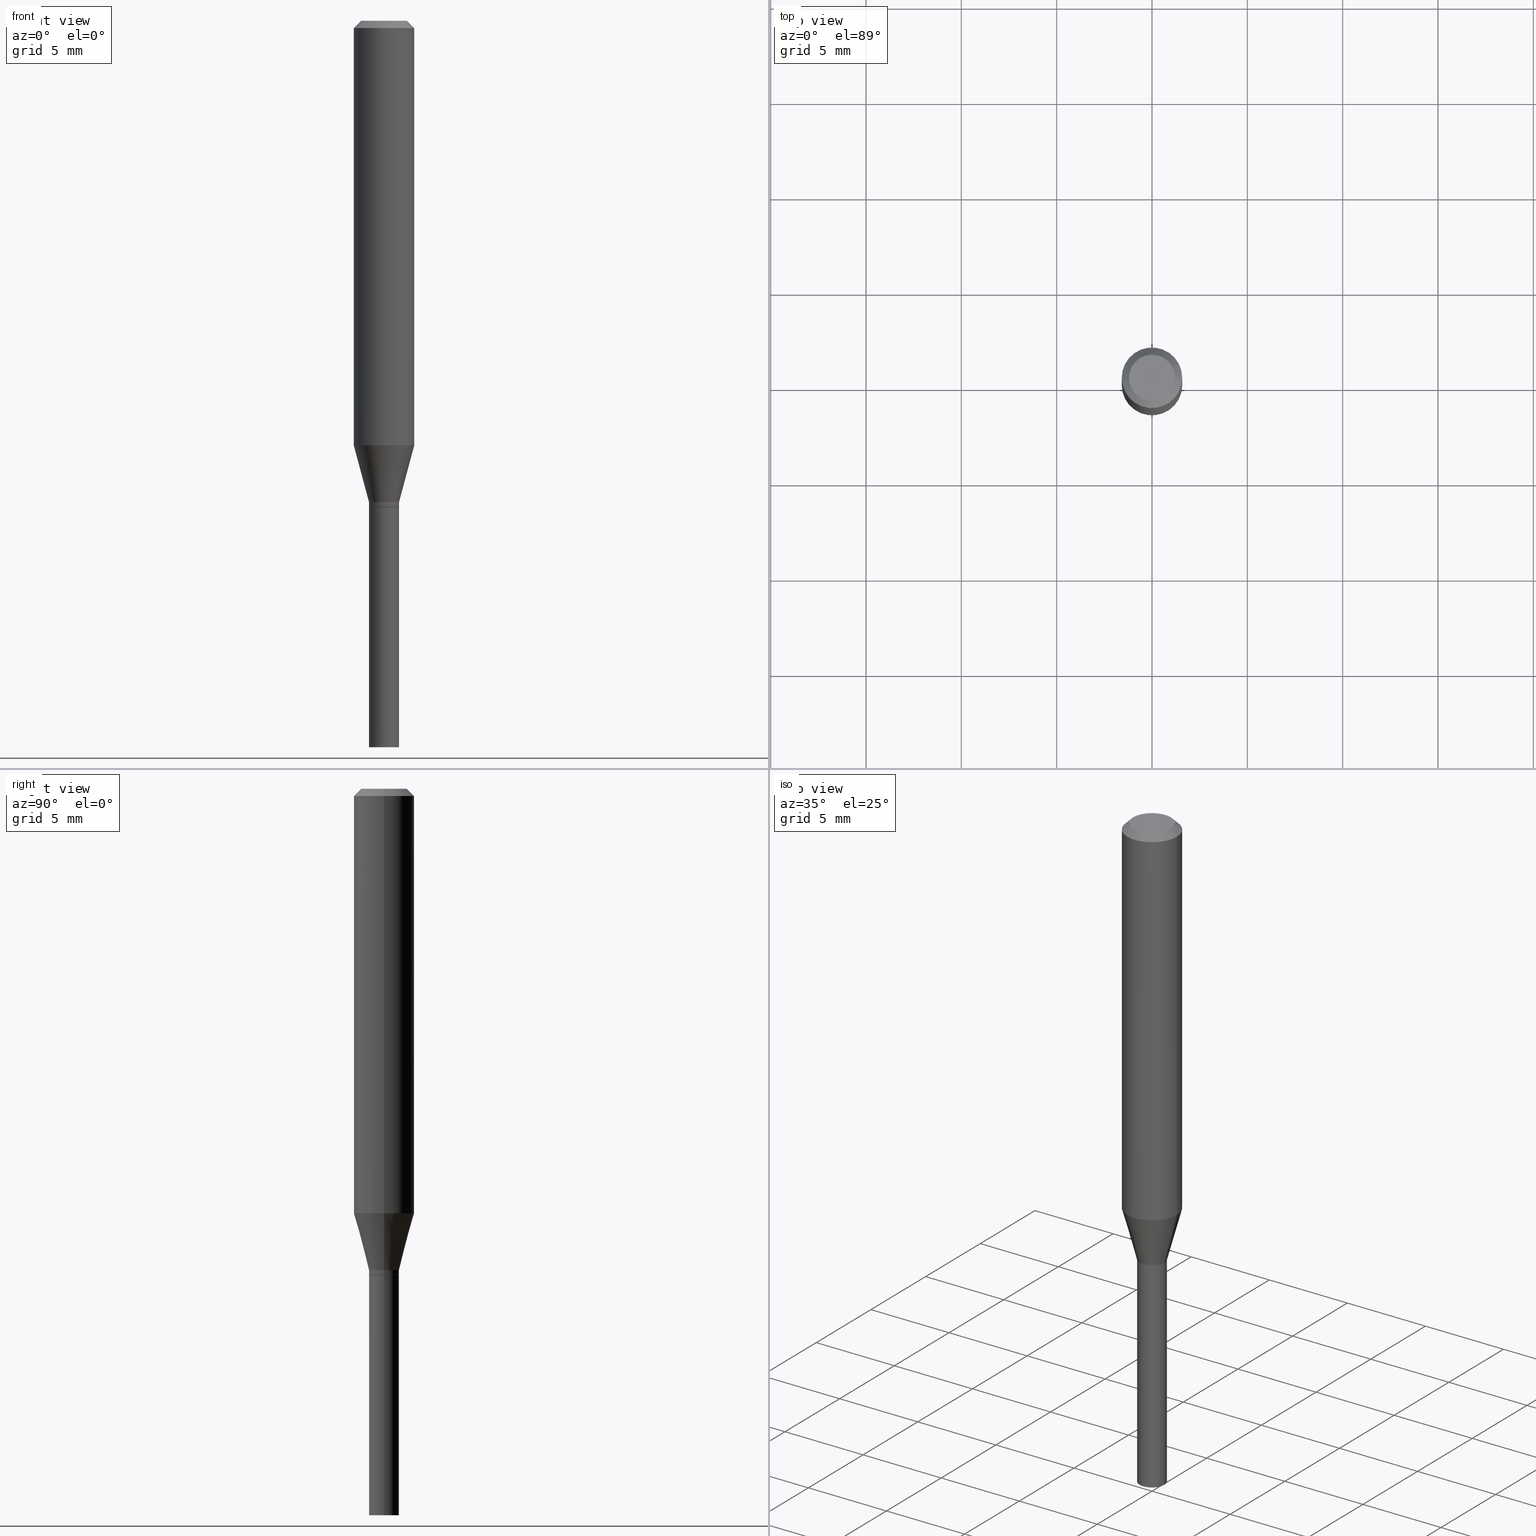
[diagram: canonical four-view strip — front | top / right | iso, engineering-drawing reading convention]
A machine part, canonical four-view strip (front | top / right | iso — engineering-drawing reading convention). The complete STEP part file that produces these views, byte-faithful:
ISO-10303-21;
HEADER;
FILE_DESCRIPTION (( 'STEP AP203' ),
    '1' );
FILE_NAME ('02680.STEP',
    '2024-03-18T21:19:14',
    ( '' ),
    ( '' ),
    'SwSTEP 2.0',
    'SolidWorks 2023',
    '' );
FILE_SCHEMA (( 'CONFIG_CONTROL_DESIGN' ));
ENDSEC;

DATA;
#1 = APPROVAL_DATE_TIME ( #382, #375 ) ;
#2 = LINE ( 'NONE', #387, #276 ) ;
#3 = CARTESIAN_POINT ( 'NONE',  ( -0.03099999999999999978, 2.202682480856310560E-16, -1.524869877979020612E-30 ) ) ;
#4 = AXIS2_PLACEMENT_3D ( 'NONE', #379, #239, #312 ) ;
#5 = CARTESIAN_POINT ( 'NONE',  ( -6.039856226162563845E-45, 8.623313963198305035E-31, 2.469815280770058928E-16 ) ) ;
#6 = ORIENTED_EDGE ( 'NONE', *, *, #307, .F. ) ;
#7 = DIRECTION ( 'NONE',  ( -1.000000000000000000, 6.982962677686266711E-15, 0.000000000000000000 ) ) ;
#8 = ORIENTED_EDGE ( 'NONE', *, *, #339, .T. ) ;
#9 = EDGE_CURVE ( 'NONE', #403, #164, #286, .T. ) ;
#10 = DIRECTION ( 'NONE',  ( 1.000000000000000000, -6.982962677686267499E-15, 4.852736867747366768E-29 ) ) ;
#11 = ORIENTED_EDGE ( 'NONE', *, *, #9, .F. ) ;
#12 = FACE_OUTER_BOUND ( 'NONE', #358, .T. ) ;
#13 = AXIS2_PLACEMENT_3D ( 'NONE', #157, #186, #150 ) ;
#14 = ORIENTED_EDGE ( 'NONE', *, *, #113, .F. ) ;
#15 = EDGE_CURVE ( 'NONE', #74, #332, #230, .T. ) ;
#16 = ORIENTED_EDGE ( 'NONE', *, *, #420, .T. ) ;
#17 = CARTESIAN_POINT ( 'NONE',  ( 2.430795993348026062E-29, -3.470532450810087145E-15, -0.9940000000000001057 ) ) ;
#18 = ORIENTED_EDGE ( 'NONE', *, *, #283, .F. ) ;
#19 = CC_DESIGN_PERSON_AND_ORGANIZATION_ASSIGNMENT ( #98, #94, ( #90 ) ) ;
#20 = AXIS2_PLACEMENT_3D ( 'NONE', #167, #278, #345 ) ;
#21 = ORIENTED_EDGE ( 'NONE', *, *, #104, .T. ) ;
#22 = DIRECTION ( 'NONE',  ( 1.000000000000000000, -6.982962677686266711E-15, 4.876176775795935793E-29 ) ) ;
#23 = ADVANCED_FACE ( 'NONE', ( #127 ), #232, .T. ) ;
#24 = EDGE_LOOP ( 'NONE', ( #48, #16, #8, #255 ) ) ;
#25 = CARTESIAN_POINT ( 'NONE',  ( 2.455250681409877327E-29, -3.505447264198518794E-15, -1.004000000000000226 ) ) ;
#26 = CLOSED_SHELL ( 'NONE', ( #77, #391, #219, #87, #101, #436, #23, #430, #38, #109, #149, #290 ) ) ;
#27 = PERSON_AND_ORGANIZATION_ROLE ( 'creator' ) ;
#28 = LOCAL_TIME ( 17, 19, 14.00000000000000000, #424 ) ;
#29 = DIRECTION ( 'NONE',  ( -2.445468806185136597E-29, 3.491481338843145583E-15, 1.000000000000000000 ) ) ;
#30 = PERSON_AND_ORGANIZATION ( #206, #117 ) ;
#31 = DIRECTION ( 'NONE',  ( 2.445468806185136597E-29, -3.491481338843145583E-15, -1.000000000000000000 ) ) ;
#32 = ORIENTED_EDGE ( 'NONE', *, *, #265, .T. ) ;
#33 = CC_DESIGN_PERSON_AND_ORGANIZATION_ASSIGNMENT ( #448, #225, ( #103 ) ) ;
#34 = DIRECTION ( 'NONE',  ( 1.000000000000000000, -6.982962677686270655E-15, 0.000000000000000000 ) ) ;
#35 = CONICAL_SURFACE ( 'NONE', #224, 0.03049999999999999586, 0.7853981633974739252 ) ;
#36 = LOCAL_TIME ( 17, 19, 14.00000000000000000, #279 ) ;
#37 = DIRECTION ( 'NONE',  ( -1.000000000000000000, 6.982962677686266711E-15, 0.000000000000000000 ) ) ;
#38 = ADVANCED_FACE ( 'NONE', ( #412 ), #85, .F. ) ;
#39 = DIRECTION ( 'NONE',  ( -2.445468806185136877E-29, 3.491481338843145188E-15, 1.000000000000000000 ) ) ;
#40 = DIRECTION ( 'NONE',  ( -2.445468806185136597E-29, 3.491481338843145583E-15, 1.000000000000000000 ) ) ;
#41 = EDGE_LOOP ( 'NONE', ( #148, #305, #11, #331 ) ) ;
#42 = CIRCLE ( 'NONE', #433, 0.03099999999999999978 ) ;
#43 = DIRECTION ( 'NONE',  ( -2.445468806185136597E-29, 3.491481338843145583E-15, 1.000000000000000000 ) ) ;
#44 = ORIENTED_EDGE ( 'NONE', *, *, #254, .F. ) ;
#45 = LINE ( 'NONE', #121, #216 ) ;
#46 = VERTEX_POINT ( 'NONE', #228 ) ;
#47 = CARTESIAN_POINT ( 'NONE',  ( -0.06250000000000000000, 3.840629472727444916E-16, -0.01499999999999999944 ) ) ;
#48 = ORIENTED_EDGE ( 'NONE', *, *, #209, .F. ) ;
#49 = UNCERTAINTY_MEASURE_WITH_UNIT (LENGTH_MEASURE( 1.000000000000000082E-05 ), #51, 'distance_accuracy_value', 'NONE');
#50 = ORIENTED_EDGE ( 'NONE', *, *, #254, .T. ) ;
#51 =( CONVERSION_BASED_UNIT ( 'INCH', #407 ) LENGTH_UNIT ( ) NAMED_UNIT ( #385 ) );
#52 = CYLINDRICAL_SURFACE ( 'NONE', #416, 0.06250000000000000000 ) ;
#53 = CARTESIAN_POINT ( 'NONE',  ( 3.316907271900976096E-16, 0.04749999999999999362, -4.235459955654645622E-17 ) ) ;
#54 = ADVANCED_FACE ( 'NONE', ( #263 ), #372, .T. ) ;
#55 = CIRCLE ( 'NONE', #357, 0.03100000000000005529 ) ;
#56 = CARTESIAN_POINT ( 'NONE',  ( 0.000000000000000000, 0.000000000000000000, 0.000000000000000000 ) ) ;
#57 = ORIENTED_EDGE ( 'NONE', *, *, #154, .F. ) ;
#58 = ORIENTED_EDGE ( 'NONE', *, *, #283, .T. ) ;
#59 = LINE ( 'NONE', #429, #399 ) ;
#60 = VECTOR ( 'NONE', #349, 39.37007874015748143 ) ;
#61 = APPROVAL_STATUS ( 'not_yet_approved' ) ;
#62 = CIRCLE ( 'NONE', #344, 0.03100000000000005529 ) ;
#63 = CARTESIAN_POINT ( 'NONE',  ( 0.06250000000000000000, -4.811533449433679005E-16, -0.01499999999999999944 ) ) ;
#64 = CARTESIAN_POINT ( 'NONE',  ( -0.06250000000000000000, 4.440892098500626162E-16, -3.074334431409316114E-30 ) ) ;
#65 = APPLICATION_CONTEXT ( 'configuration controlled 3d designs of mechanical parts and assemblies' ) ;
#66 = LINE ( 'NONE', #284, #380 ) ;
#67 = LINE ( 'NONE', #3, #97 ) ;
#68 = FACE_OUTER_BOUND ( 'NONE', #296, .T. ) ;
#69 = VERTEX_POINT ( 'NONE', #370 ) ;
#70 = DIRECTION ( 'NONE',  ( -2.445468806185136597E-29, 3.491481338843145583E-15, 1.000000000000000000 ) ) ;
#71 = ORIENTED_EDGE ( 'NONE', *, *, #457, .T. ) ;
#72 = CIRCLE ( 'NONE', #389, 0.04749999999999999362 ) ;
#73 = DIRECTION ( 'NONE',  ( -2.445468806185136597E-29, 3.491481338843145583E-15, 1.000000000000000000 ) ) ;
#74 = VERTEX_POINT ( 'NONE', #83 ) ;
#75 = CC_DESIGN_PERSON_AND_ORGANIZATION_ASSIGNMENT ( #244, #463, ( #166 ) ) ;
#76 = CARTESIAN_POINT ( 'NONE',  ( 3.668203209277705088E-31, -5.237222008264718399E-17, -0.01499999999999999944 ) ) ;
#77 = ADVANCED_FACE ( 'NONE', ( #378 ), #268, .T. ) ;
#78 = ORIENTED_EDGE ( 'NONE', *, *, #209, .T. ) ;
#79 = DIRECTION ( 'NONE',  ( -2.445468806185136877E-29, 3.491481338843145188E-15, 1.000000000000000000 ) ) ;
#80 = ORIENTED_EDGE ( 'NONE', *, *, #113, .T. ) ;
#81 = AXIS2_PLACEMENT_3D ( 'NONE', #173, #207, #383 ) ;
#82 = PRODUCT_DEFINITION ( 'UNKNOWN', '', #166, #141 ) ;
#83 = CARTESIAN_POINT ( 'NONE',  ( -0.03099999999999999978, -4.151066388145987232E-15, -1.004000000000000226 ) ) ;
#84 =( NAMED_UNIT ( * ) PLANE_ANGLE_UNIT ( ) SI_UNIT ( $, .RADIAN. ) );
#85 = PLANE ( 'NONE',  #314 ) ;
#86 = ORIENTED_EDGE ( 'NONE', *, *, #420, .F. ) ;
#87 = ADVANCED_FACE ( 'NONE', ( #409 ), #52, .T. ) ;
#88 = AXIS2_PLACEMENT_3D ( 'NONE', #212, #70, #179 ) ;
#89 = VERTEX_POINT ( 'NONE', #124 ) ;
#90 = SECURITY_CLASSIFICATION ( '', '', #202 ) ;
#91 = EDGE_CURVE ( 'NONE', #261, #89, #288, .T. ) ;
#92 = DIRECTION ( 'NONE',  ( 1.000000000000000000, -6.982962677686270655E-15, 0.000000000000000000 ) ) ;
#93 = DIRECTION ( 'NONE',  ( -2.445468806185136597E-29, 3.491481338843145583E-15, 1.000000000000000000 ) ) ;
#94 = PERSON_AND_ORGANIZATION_ROLE ( 'classification_officer' ) ;
#95 = CC_DESIGN_PERSON_AND_ORGANIZATION_ASSIGNMENT ( #341, #27, ( #82 ) ) ;
#96 = CARTESIAN_POINT ( 'NONE',  ( 0.03049999999999999586, -3.718427625867950118E-15, -1.004000000000000226 ) ) ;
#97 = VECTOR ( 'NONE', #39, 39.37007874015748143 ) ;
#98 = PERSON_AND_ORGANIZATION ( #206, #117 ) ;
#99 = CARTESIAN_POINT ( 'NONE',  ( 3.668203209277705088E-31, -5.237222008264718399E-17, -0.01499999999999999944 ) ) ;
#100 = VERTEX_POINT ( 'NONE', #455 ) ;
#101 = ADVANCED_FACE ( 'NONE', ( #128 ), #443, .T. ) ;
#102 = DIRECTION ( 'NONE',  ( 0.7071067811865416886, -7.319954787623233957E-15, -0.7071067811865531239 ) ) ;
#103 = PRODUCT ( '02680', '02680', '', ( #333 ) ) ;
#104 = EDGE_CURVE ( 'NONE', #69, #456, #42, .T. ) ;
#105 = LINE ( 'NONE', #64, #60 ) ;
#106 = APPROVAL_DATE_TIME ( #273, #359 ) ;
#107 = CIRCLE ( 'NONE', #116, 0.03100000000000005876 ) ;
#108 = CARTESIAN_POINT ( 'NONE',  ( 0.000000000000000000, 0.000000000000000000, 0.000000000000000000 ) ) ;
#109 = ADVANCED_FACE ( 'NONE', ( #176 ), #272, .F. ) ;
#110 = CARTESIAN_POINT ( 'NONE',  ( 0.03049999999999999586, -3.718427625867950118E-15, -1.004000000000000226 ) ) ;
#111 = EDGE_LOOP ( 'NONE', ( #250, #78, #215, #445 ) ) ;
#112 = CARTESIAN_POINT ( 'NONE',  ( -6.039856226162563845E-45, 8.623313963198305035E-31, 2.469815280770058928E-16 ) ) ;
#113 = EDGE_CURVE ( 'NONE', #355, #100, #309, .T. ) ;
#114 = EDGE_LOOP ( 'NONE', ( #122, #400, #340, #258 ) ) ;
#115 = AXIS2_PLACEMENT_3D ( 'NONE', #56, #267, #22 ) ;
#116 = AXIS2_PLACEMENT_3D ( 'NONE', #321, #73, #289 ) ;
#117 = ORGANIZATION ( 'UNSPECIFIED', 'UNSPECIFIED', '' ) ;
#118 = DIRECTION ( 'NONE',  ( -2.445468806185136597E-29, 3.491481338843145583E-15, 1.000000000000000000 ) ) ;
#119 = ORIENTED_EDGE ( 'NONE', *, *, #386, .T. ) ;
#120 = EDGE_CURVE ( 'NONE', #355, #368, #246, .T. ) ;
#121 = CARTESIAN_POINT ( 'NONE',  ( -0.03049999999999999586, -3.288731729791688045E-15, -1.004000000000000226 ) ) ;
#122 = ORIENTED_EDGE ( 'NONE', *, *, #231, .F. ) ;
#123 = DIRECTION ( 'NONE',  ( 0.000000000000000000, 0.000000000000000000, 1.000000000000000000 ) ) ;
#124 = CARTESIAN_POINT ( 'NONE',  ( 0.06250000000000000000, -4.888073874380388472E-16, -0.01499999999999999944 ) ) ;
#125 = AXIS2_PLACEMENT_3D ( 'NONE', #133, #93, #243 ) ;
#126 = DIRECTION ( 'NONE',  ( -2.445468806185136597E-29, 3.491481338843145583E-15, 1.000000000000000000 ) ) ;
#127 = FACE_OUTER_BOUND ( 'NONE', #291, .T. ) ;
#128 = FACE_OUTER_BOUND ( 'NONE', #41, .T. ) ;
#129 = ORIENTED_EDGE ( 'NONE', *, *, #15, .F. ) ;
#130 = AXIS2_PLACEMENT_3D ( 'NONE', #251, #188, #214 ) ;
#131 = DIRECTION ( 'NONE',  ( -2.445468806185136597E-29, 3.491481338843145583E-15, 1.000000000000000000 ) ) ;
#132 = APPLICATION_CONTEXT ( 'configuration controlled 3d designs of mechanical parts and assemblies' ) ;
#133 = CARTESIAN_POINT ( 'NONE',  ( 2.455250681409877327E-29, -3.505447264198518794E-15, -1.004000000000000226 ) ) ;
#134 = PERSON_AND_ORGANIZATION ( #206, #117 ) ;
#135 = DIRECTION ( 'NONE',  ( 1.000000000000000000, -6.982962677686269866E-15, 0.000000000000000000 ) ) ;
#136 = CARTESIAN_POINT ( 'NONE',  ( -0.06250000000000000000, -2.615986089827427653E-15, -0.8764403995615810405 ) ) ;
#137 = VECTOR ( 'NONE', #257, 39.37007874015748143 ) ;
#138 = ORIENTED_EDGE ( 'NONE', *, *, #154, .T. ) ;
#139 = CARTESIAN_POINT ( 'NONE',  ( -0.04749999999999999362, 3.578768372314215436E-16, 2.469815280770034769E-16 ) ) ;
#140 = CC_DESIGN_DATE_AND_TIME_ASSIGNMENT ( #427, #311, ( #90 ) ) ;
#141 = DESIGN_CONTEXT ( 'detailed design', #132, 'design' ) ;
#142 = LINE ( 'NONE', #63, #308 ) ;
#143 = PERSON_AND_ORGANIZATION ( #206, #117 ) ;
#144 = CARTESIAN_POINT ( 'NONE',  ( 2.430795993348026062E-29, -3.470532450810087145E-15, -0.9940000000000001057 ) ) ;
#145 = CIRCLE ( 'NONE', #408, 0.03100000000000005876 ) ;
#146 = APPROVAL_PERSON_ORGANIZATION ( #30, #413, #282 ) ;
#147 = FACE_OUTER_BOUND ( 'NONE', #158, .T. ) ;
#148 = ORIENTED_EDGE ( 'NONE', *, *, #318, .T. ) ;
#149 = ADVANCED_FACE ( 'NONE', ( #460 ), #35, .T. ) ;
#150 = DIRECTION ( 'NONE',  ( 1.000000000000000000, -6.982962677686273810E-15, 0.000000000000000000 ) ) ;
#151 = VERTEX_POINT ( 'NONE', #139 ) ;
#152 = FACE_OUTER_BOUND ( 'NONE', #114, .T. ) ;
#153 = ORIENTED_EDGE ( 'NONE', *, *, #104, .F. ) ;
#154 = EDGE_CURVE ( 'NONE', #89, #261, #297, .T. ) ;
#155 = AXIS2_PLACEMENT_3D ( 'NONE', #76, #327, #7 ) ;
#156 = LOCAL_TIME ( 17, 19, 14.00000000000000000, #235 ) ;
#157 = CARTESIAN_POINT ( 'NONE',  ( 2.430795993348026062E-29, -3.470532450810087145E-15, -0.9940000000000001057 ) ) ;
#158 = EDGE_LOOP ( 'NONE', ( #21, #438, #187, #44 ) ) ;
#159 = DIRECTION ( 'NONE',  ( 1.000000000000000000, -6.982962677686273810E-15, 0.000000000000000000 ) ) ;
#160 = ORIENTED_EDGE ( 'NONE', *, *, #236, .F. ) ;
#161 = EDGE_LOOP ( 'NONE', ( #428, #280, #80, #86 ) ) ;
#162 = DIRECTION ( 'NONE',  ( -2.445468806185136597E-29, 3.491481338843145583E-15, 1.000000000000000000 ) ) ;
#163 = DIRECTION ( 'NONE',  ( -2.445468806185136597E-29, 3.491481338843145583E-15, 1.000000000000000000 ) ) ;
#164 = VERTEX_POINT ( 'NONE', #136 ) ;
#165 = CIRCLE ( 'NONE', #306, 0.03099999999999999978 ) ;
#166 = PRODUCT_DEFINITION_FORMATION_WITH_SPECIFIED_SOURCE ( 'ANY', '', #103, .NOT_KNOWN. ) ;
#167 = CARTESIAN_POINT ( 'NONE',  ( 2.455250681409877327E-29, -3.505447264198518794E-15, -1.004000000000000226 ) ) ;
#168 = CC_DESIGN_APPROVAL ( #359, ( #166 ) ) ;
#169 = CC_DESIGN_DATE_AND_TIME_ASSIGNMENT ( #172, #317, ( #82 ) ) ;
#170 = DIRECTION ( 'NONE',  ( 1.000000000000000000, -6.982962677686266711E-15, 0.000000000000000000 ) ) ;
#171 = DIRECTION ( 'NONE',  ( -2.445468806185136597E-29, 3.491481338843145583E-15, 1.000000000000000000 ) ) ;
#172 = DATE_AND_TIME ( #313, #36 ) ;
#173 = CARTESIAN_POINT ( 'NONE',  ( 2.143307657608283441E-29, -3.060075299677490269E-15, -0.8764403995615810405 ) ) ;
#174 = AXIS2_PLACEMENT_3D ( 'NONE', #233, #163, #193 ) ;
#175 = CONICAL_SURFACE ( 'NONE', #210, 0.06250000000000000000, 0.7853981633974401744 ) ;
#176 = FACE_OUTER_BOUND ( 'NONE', #447, .T. ) ;
#177 = CALENDAR_DATE ( 2024, 18, 3 ) ;
#178 = CYLINDRICAL_SURFACE ( 'NONE', #343, 0.03099999999999999978 ) ;
#179 = DIRECTION ( 'NONE',  ( 1.000000000000000000, -6.982962677686269866E-15, 0.000000000000000000 ) ) ;
#180 = CLOSED_SHELL ( 'NONE', ( #363, #183, #54, #418 ) ) ;
#181 = ORIENTED_EDGE ( 'NONE', *, *, #194, .T. ) ;
#182 = CONICAL_SURFACE ( 'NONE', #155, 0.06250000000000000000, 0.7853981633974401744 ) ;
#183 = ADVANCED_FACE ( 'NONE', ( #431 ), #319, .F. ) ;
#184 = DIRECTION ( 'NONE',  ( 1.000000000000000000, -6.982962677686273021E-15, 0.000000000000000000 ) ) ;
#185 = ORIENTED_EDGE ( 'NONE', *, *, #9, .T. ) ;
#186 = DIRECTION ( 'NONE',  ( -2.445468806185136597E-29, 3.491481338843145583E-15, 1.000000000000000000 ) ) ;
#187 = ORIENTED_EDGE ( 'NONE', *, *, #194, .F. ) ;
#188 = DIRECTION ( 'NONE',  ( 2.438088387897960049E-29, -3.491481338843145188E-15, -1.000000000000000000 ) ) ;
#189 = ORIENTED_EDGE ( 'NONE', *, *, #401, .F. ) ;
#190 = AXIS2_PLACEMENT_3D ( 'NONE', #245, #390, #281 ) ;
#191 = ORIENTED_EDGE ( 'NONE', *, *, #404, .F. ) ;
#192 = CARTESIAN_POINT ( 'NONE',  ( 3.668203209277705088E-31, -5.237222008264718399E-17, -0.01499999999999999944 ) ) ;
#193 = DIRECTION ( 'NONE',  ( 1.000000000000000000, -6.982962677686266711E-15, 4.876176775795935232E-29 ) ) ;
#194 = EDGE_CURVE ( 'NONE', #332, #74, #453, .T. ) ;
#195 = AXIS2_PLACEMENT_3D ( 'NONE', #5, #439, #10 ) ;
#196 = CARTESIAN_POINT ( 'NONE',  ( 2.455250681409877327E-29, -3.505447264198518794E-15, -1.004000000000000226 ) ) ;
#197 = EDGE_LOOP ( 'NONE', ( #153, #361 ) ) ;
#198 = EDGE_CURVE ( 'NONE', #368, #355, #237, .T. ) ;
#199 = ORIENTED_EDGE ( 'NONE', *, *, #386, .F. ) ;
#200 = AXIS2_PLACEMENT_3D ( 'NONE', #229, #373, #337 ) ;
#201 = CARTESIAN_POINT ( 'NONE',  ( 3.668203209277704895E-29, -5.237222008264718177E-15, -1.500000000000000222 ) ) ;
#202 = SECURITY_CLASSIFICATION_LEVEL ( 'unclassified' ) ;
#203 = DIRECTION ( 'NONE',  ( -0.2588190451025214611, 5.211531920934551042E-15, 0.9659258262890682012 ) ) ;
#204 = CALENDAR_DATE ( 2024, 18, 3 ) ;
#205 = VERTEX_POINT ( 'NONE', #421 ) ;
#206 = PERSON ( 'UNSPECIFIED', 'UNSPECIFIED', 'UNSPECIFIED', ('UNSPECIFIED'), ('UNSPECIFIED'), ('UNSPECIFIED') ) ;
#207 = DIRECTION ( 'NONE',  ( -2.445468806185136597E-29, 3.491481338843145583E-15, 1.000000000000000000 ) ) ;
#208 = DIRECTION ( 'NONE',  ( -2.445468806185136597E-29, 3.491481338843145583E-15, 1.000000000000000000 ) ) ;
#209 = EDGE_CURVE ( 'NONE', #46, #328, #59, .T. ) ;
#210 = AXIS2_PLACEMENT_3D ( 'NONE', #99, #31, #37 ) ;
#211 = DIRECTION ( 'NONE',  ( 0.7071067811865656694, -2.468850131082446387E-15, 0.7071067811865294761 ) ) ;
#212 = CARTESIAN_POINT ( 'NONE',  ( 2.455250681409877327E-29, -3.505447264198518794E-15, -1.004000000000000226 ) ) ;
#213 = ORIENTED_EDGE ( 'NONE', *, *, #265, .F. ) ;
#214 = DIRECTION ( 'NONE',  ( -1.000000000000000000, 6.982962677686265922E-15, -4.876176775795935793E-29 ) ) ;
#215 = ORIENTED_EDGE ( 'NONE', *, *, #318, .F. ) ;
#216 = VECTOR ( 'NONE', #260, 39.37007874015748143 ) ;
#217 = CARTESIAN_POINT ( 'NONE',  ( -0.03049999999999999586, -3.286082502617576844E-15, -1.004000000000000226 ) ) ;
#218 = ORIENTED_EDGE ( 'NONE', *, *, #371, .T. ) ;
#219 = ADVANCED_FACE ( 'NONE', ( #423 ), #175, .T. ) ;
#220 = CARTESIAN_POINT ( 'NONE',  ( 3.668203209277704895E-29, -5.237222008264718177E-15, -1.500000000000000222 ) ) ;
#221 = ORIENTED_EDGE ( 'NONE', *, *, #198, .F. ) ;
#222 =( NAMED_UNIT ( * ) SI_UNIT ( $, .STERADIAN. ) SOLID_ANGLE_UNIT ( ) );
#223 = ORIENTED_EDGE ( 'NONE', *, *, #365, .T. ) ;
#224 = AXIS2_PLACEMENT_3D ( 'NONE', #464, #29, #310 ) ;
#225 = PERSON_AND_ORGANIZATION_ROLE ( 'design_owner' ) ;
#226 = DIRECTION ( 'NONE',  ( -1.000000000000000000, 6.982962677686265922E-15, -4.876176775795935793E-29 ) ) ;
#227 = APPLICATION_PROTOCOL_DEFINITION ( 'international standard', 'config_control_design', 1994, #65 ) ;
#228 = CARTESIAN_POINT ( 'NONE',  ( -0.03100000000000005876, -3.283433275443465643E-15, -1.003500000000000059 ) ) ;
#229 = CARTESIAN_POINT ( 'NONE',  ( 2.430795993348026062E-29, -3.470532450810087145E-15, -0.9940000000000001057 ) ) ;
#230 = CIRCLE ( 'NONE', #452, 0.03099999999999999978 ) ;
#231 = EDGE_CURVE ( 'NONE', #205, #89, #142, .T. ) ;
#232 = CYLINDRICAL_SURFACE ( 'NONE', #115, 0.06250000000000000000 ) ;
#233 = CARTESIAN_POINT ( 'NONE',  ( 0.000000000000000000, 0.000000000000000000, 0.000000000000000000 ) ) ;
#234 = CARTESIAN_POINT ( 'NONE',  ( 3.668203209277705088E-31, -5.237222008264718399E-17, -0.01499999999999999944 ) ) ;
#235 = COORDINATED_UNIVERSAL_TIME_OFFSET ( 5, 0, .BEHIND. ) ;
#236 = EDGE_CURVE ( 'NONE', #328, #164, #2, .T. ) ;
#237 = CIRCLE ( 'NONE', #264, 0.03049999999999999586 ) ;
#238 = APPROVAL_PERSON_ORGANIZATION ( #143, #359, #432 ) ;
#239 = DIRECTION ( 'NONE',  ( -2.438088387897960049E-29, 3.491481338843145188E-15, 1.000000000000000000 ) ) ;
#240 = PERSON_AND_ORGANIZATION ( #206, #117 ) ;
#241 = CARTESIAN_POINT ( 'NONE',  ( -0.06250000000000000000, -1.112134550030006255E-15, -0.01499999999999999944 ) ) ;
#242 = COORDINATED_UNIVERSAL_TIME_OFFSET ( 5, 0, .BEHIND. ) ;
#243 = DIRECTION ( 'NONE',  ( 1.000000000000000000, -6.982962677686269866E-15, 0.000000000000000000 ) ) ;
#244 = PERSON_AND_ORGANIZATION ( #206, #117 ) ;
#245 = CARTESIAN_POINT ( 'NONE',  ( 0.000000000000000000, 0.000000000000000000, 0.000000000000000000 ) ) ;
#246 = CIRCLE ( 'NONE', #125, 0.03049999999999999586 ) ;
#247 = APPROVAL_ROLE ( '' ) ;
#248 = PRODUCT_DEFINITION_SHAPE ( 'NONE', 'NONE',  #82 ) ;
#249 = DIRECTION ( 'NONE',  ( 1.000000000000000000, -6.982962677686270655E-15, 0.000000000000000000 ) ) ;
#250 = ORIENTED_EDGE ( 'NONE', *, *, #401, .T. ) ;
#251 = CARTESIAN_POINT ( 'NONE',  ( 2.164718430082987858E-16, 0.03099999999999649564, -1.004000000000000226 ) ) ;
#252 = ORIENTED_EDGE ( 'NONE', *, *, #91, .F. ) ;
#253 = DIRECTION ( 'NONE',  ( -0.7071067811865416886, 2.468850131082196713E-15, -0.7071067811865531239 ) ) ;
#254 = EDGE_CURVE ( 'NONE', #69, #332, #66, .T. ) ;
#255 = ORIENTED_EDGE ( 'NONE', *, *, #457, .F. ) ;
#256 = AXIS2_PLACEMENT_3D ( 'NONE', #381, #462, #351 ) ;
#257 = DIRECTION ( 'NONE',  ( -2.445468806185136877E-29, 3.491481338843145188E-15, 1.000000000000000000 ) ) ;
#258 = ORIENTED_EDGE ( 'NONE', *, *, #91, .T. ) ;
#259 = MANIFOLD_SOLID_BREP ( 'Body-Move/Copy2[2]', #26 ) ;
#260 = DIRECTION ( 'NONE',  ( -0.7071067811865656694, 7.493145998870420424E-15, 0.7071067811865294761 ) ) ;
#261 = VERTEX_POINT ( 'NONE', #241 ) ;
#262 = MANIFOLD_SOLID_BREP ( 'Body-Move/Copy2[1]', #180 ) ;
#263 = FACE_OUTER_BOUND ( 'NONE', #419, .T. ) ;
#264 = AXIS2_PLACEMENT_3D ( 'NONE', #25, #171, #135 ) ;
#265 = EDGE_CURVE ( 'NONE', #164, #403, #425, .T. ) ;
#266 = APPLICATION_PROTOCOL_DEFINITION ( 'international standard', 'config_control_design', 1994, #132 ) ;
#267 = DIRECTION ( 'NONE',  ( -2.445468806185136597E-29, 3.491481338843145583E-15, 1.000000000000000000 ) ) ;
#268 = CYLINDRICAL_SURFACE ( 'NONE', #335, 0.03100000000000005876 ) ;
#269 = CARTESIAN_POINT ( 'NONE',  ( 2.143307657608283441E-29, -3.060075299677490269E-15, -0.8764403995615810405 ) ) ;
#270 = VECTOR ( 'NONE', #79, 39.37007874015748143 ) ;
#271 = ORIENTED_EDGE ( 'NONE', *, *, #346, .T. ) ;
#272 = PLANE ( 'NONE',  #20 ) ;
#273 = DATE_AND_TIME ( #275, #28 ) ;
#274 = DIRECTION ( 'NONE',  ( -2.445468806185136877E-29, 3.491481338843145188E-15, 1.000000000000000000 ) ) ;
#275 = CALENDAR_DATE ( 2024, 18, 3 ) ;
#276 = VECTOR ( 'NONE', #203, 39.37007874015747433 ) ;
#277 = CC_DESIGN_APPROVAL ( #375, ( #90 ) ) ;
#278 = DIRECTION ( 'NONE',  ( -2.438088387897960049E-29, 3.491481338843145188E-15, 1.000000000000000000 ) ) ;
#279 = COORDINATED_UNIVERSAL_TIME_OFFSET ( 5, 0, .BEHIND. ) ;
#280 = ORIENTED_EDGE ( 'NONE', *, *, #198, .T. ) ;
#281 = DIRECTION ( 'NONE',  ( 1.000000000000000000, -6.982962677686266711E-15, 4.876176775795935793E-29 ) ) ;
#282 = APPROVAL_ROLE ( '' ) ;
#283 = EDGE_CURVE ( 'NONE', #164, #261, #105, .T. ) ;
#284 = CARTESIAN_POINT ( 'NONE',  ( 0.03099999999999999978, -2.164718430082742572E-16, 1.511614800496739984E-30 ) ) ;
#285 = APPROVAL_STATUS ( 'not_yet_approved' ) ;
#286 = CIRCLE ( 'NONE', #342, 0.06250000000000000000 ) ;
#287 = DIRECTION ( 'NONE',  ( 1.000000000000000000, -6.982962677686273810E-15, 0.000000000000000000 ) ) ;
#288 = CIRCLE ( 'NONE', #465, 0.06250000000000000000 ) ;
#289 = DIRECTION ( 'NONE',  ( 1.000000000000000000, -6.982962677686273021E-15, 0.000000000000000000 ) ) ;
#290 = ADVANCED_FACE ( 'NONE', ( #316 ), #466, .T. ) ;
#291 = EDGE_LOOP ( 'NONE', ( #18, #32, #218, #252 ) ) ;
#292 = LINE ( 'NONE', #325, #137 ) ;
#293 = ORIENTED_EDGE ( 'NONE', *, *, #371, .F. ) ;
#294 = CARTESIAN_POINT ( 'NONE',  ( 0.03099999999999999978, -3.721919107206793126E-15, -1.004000000000000226 ) ) ;
#295 = CC_DESIGN_PERSON_AND_ORGANIZATION_ASSIGNMENT ( #240, #422, ( #166 ) ) ;
#296 = EDGE_LOOP ( 'NONE', ( #299, #322, #189, #14 ) ) ;
#297 = CIRCLE ( 'NONE', #302, 0.06250000000000000000 ) ;
#298 = DIRECTION ( 'NONE',  ( -2.445468806185136597E-29, 3.491481338843145583E-15, 1.000000000000000000 ) ) ;
#299 = ORIENTED_EDGE ( 'NONE', *, *, #120, .T. ) ;
#300 = DIRECTION ( 'NONE',  ( 1.000000000000000000, -6.982962677686270655E-15, 0.000000000000000000 ) ) ;
#301 = DIRECTION ( 'NONE',  ( -2.445468806185136597E-29, 3.491481338843145583E-15, 1.000000000000000000 ) ) ;
#302 = AXIS2_PLACEMENT_3D ( 'NONE', #234, #426, #170 ) ;
#303 = DIRECTION ( 'NONE',  ( -2.445468806185136597E-29, 3.491481338843145583E-15, 1.000000000000000000 ) ) ;
#304 = DIRECTION ( 'NONE',  ( 1.000000000000000000, -6.982962677686266711E-15, 0.000000000000000000 ) ) ;
#305 = ORIENTED_EDGE ( 'NONE', *, *, #236, .T. ) ;
#306 = AXIS2_PLACEMENT_3D ( 'NONE', #220, #40, #249 ) ;
#307 = EDGE_CURVE ( 'NONE', #456, #74, #67, .T. ) ;
#308 = VECTOR ( 'NONE', #102, 39.37007874015748854 ) ;
#309 = LINE ( 'NONE', #96, #459 ) ;
#310 = DIRECTION ( 'NONE',  ( 1.000000000000000000, -6.982962677686269866E-15, 0.000000000000000000 ) ) ;
#311 = DATE_TIME_ROLE ( 'classification_date' ) ;
#312 = DIRECTION ( 'NONE',  ( 1.000000000000000000, -6.982962677686265922E-15, 4.876176775795935793E-29 ) ) ;
#313 = CALENDAR_DATE ( 2024, 18, 3 ) ;
#314 = AXIS2_PLACEMENT_3D ( 'NONE', #53, #414, #226 ) ;
#315 = CONICAL_SURFACE ( 'NONE', #88, 0.03049999999999999586, 0.7853981633974739252 ) ;
#316 = FACE_OUTER_BOUND ( 'NONE', #24, .T. ) ;
#317 = DATE_TIME_ROLE ( 'creation_date' ) ;
#318 = EDGE_CURVE ( 'NONE', #338, #328, #55, .T. ) ;
#319 = PLANE ( 'NONE',  #4 ) ;
#320 = CARTESIAN_POINT ( 'NONE',  ( -0.03100000000000005529, -2.933125146275941575E-15, -0.9940000000000001057 ) ) ;
#321 = CARTESIAN_POINT ( 'NONE',  ( 2.454027947006784806E-29, -3.503701523529096896E-15, -1.003500000000000059 ) ) ;
#322 = ORIENTED_EDGE ( 'NONE', *, *, #449, .T. ) ;
#323 = PLANE ( 'NONE',  #130 ) ;
#324 = EDGE_LOOP ( 'NONE', ( #181, #396 ) ) ;
#325 = CARTESIAN_POINT ( 'NONE',  ( 0.03100000000000005876, -2.164718430082746763E-16, 1.511614800496742961E-30 ) ) ;
#326 = EDGE_LOOP ( 'NONE', ( #199, #406, #138, #191 ) ) ;
#327 = DIRECTION ( 'NONE',  ( 2.445468806185136597E-29, -3.491481338843145583E-15, -1.000000000000000000 ) ) ;
#328 = VERTEX_POINT ( 'NONE', #320 ) ;
#329 = CIRCLE ( 'NONE', #195, 0.04749999999999999362 ) ;
#330 = APPROVAL_PERSON_ORGANIZATION ( #134, #375, #247 ) ;
#331 = ORIENTED_EDGE ( 'NONE', *, *, #346, .F. ) ;
#332 = VERTEX_POINT ( 'NONE', #294 ) ;
#333 = MECHANICAL_CONTEXT ( 'NONE', #65, 'mechanical' ) ;
#334 = CARTESIAN_POINT ( 'NONE',  ( 0.000000000000000000, 0.000000000000000000, 0.000000000000000000 ) ) ;
#335 = AXIS2_PLACEMENT_3D ( 'NONE', #415, #458, #377 ) ;
#336 = AXIS2_PLACEMENT_3D ( 'NONE', #451, #123, #411 ) ;
#337 = DIRECTION ( 'NONE',  ( 1.000000000000000000, -6.982962677686273810E-15, 0.000000000000000000 ) ) ;
#338 = VERTEX_POINT ( 'NONE', #437 ) ;
#339 = EDGE_CURVE ( 'NONE', #100, #338, #292, .T. ) ;
#340 = ORIENTED_EDGE ( 'NONE', *, *, #404, .T. ) ;
#341 = PERSON_AND_ORGANIZATION ( #206, #117 ) ;
#342 = AXIS2_PLACEMENT_3D ( 'NONE', #269, #301, #92 ) ;
#343 = AXIS2_PLACEMENT_3D ( 'NONE', #108, #118, #353 ) ;
#344 = AXIS2_PLACEMENT_3D ( 'NONE', #17, #126, #159 ) ;
#345 = DIRECTION ( 'NONE',  ( 1.000000000000000000, -6.982962677686265922E-15, 4.876176775795935793E-29 ) ) ;
#346 = EDGE_CURVE ( 'NONE', #338, #403, #442, .T. ) ;
#347 = COORDINATED_UNIVERSAL_TIME_OFFSET ( 5, 0, .BEHIND. ) ;
#348 = DIRECTION ( 'NONE',  ( -2.445468806185136877E-29, 3.491481338843145188E-15, 1.000000000000000000 ) ) ;
#349 = DIRECTION ( 'NONE',  ( -2.445468806185136877E-29, 3.491481338843145188E-15, 1.000000000000000000 ) ) ;
#350 = CONICAL_SURFACE ( 'NONE', #13, 0.03100000000000005529, 0.2617993877991501295 ) ;
#351 = DIRECTION ( 'NONE',  ( 1.000000000000000000, -6.982962677686270655E-15, 0.000000000000000000 ) ) ;
#352 = DATE_AND_TIME ( #204, #369 ) ;
#353 = DIRECTION ( 'NONE',  ( 1.000000000000000000, -6.982962677686266711E-15, 4.876176775795935232E-29 ) ) ;
#354 = DIRECTION ( 'NONE',  ( 0.2588190451025214611, 1.565188264969621573E-15, 0.9659258262890682012 ) ) ;
#355 = VERTEX_POINT ( 'NONE', #110 ) ;
#356 = CARTESIAN_POINT ( 'NONE',  ( 2.454027947006784806E-29, -3.503701523529096896E-15, -1.003500000000000059 ) ) ;
#357 = AXIS2_PLACEMENT_3D ( 'NONE', #144, #395, #287 ) ;
#358 = EDGE_LOOP ( 'NONE', ( #160, #71, #271, #213 ) ) ;
#359 = APPROVAL ( #285, 'UNSPECIFIED' ) ;
#360 = LINE ( 'NONE', #47, #374 ) ;
#361 = ORIENTED_EDGE ( 'NONE', *, *, #365, .F. ) ;
#362 = CARTESIAN_POINT ( 'NONE',  ( 0.06250000000000000000, -3.496510467032882333E-15, -0.8764403995615810405 ) ) ;
#363 = ADVANCED_FACE ( 'NONE', ( #147 ), #178, .T. ) ;
#364 = ORIENTED_EDGE ( 'NONE', *, *, #441, .T. ) ;
#365 = EDGE_CURVE ( 'NONE', #456, #69, #165, .T. ) ;
#366 =( LENGTH_UNIT ( ) NAMED_UNIT ( * ) SI_UNIT ( $, .METRE. ) );
#367 = VECTOR ( 'NONE', #354, 39.37007874015747433 ) ;
#368 = VERTEX_POINT ( 'NONE', #217 ) ;
#369 = LOCAL_TIME ( 17, 19, 14.00000000000000000, #242 ) ;
#370 = CARTESIAN_POINT ( 'NONE',  ( 0.03099999999999999978, -5.453693851272993297E-15, -1.500000000000000222 ) ) ;
#371 = EDGE_CURVE ( 'NONE', #403, #89, #397, .T. ) ;
#372 = CYLINDRICAL_SURFACE ( 'NONE', #174, 0.03099999999999999978 ) ;
#373 = DIRECTION ( 'NONE',  ( -2.445468806185136597E-29, 3.491481338843145583E-15, 1.000000000000000000 ) ) ;
#374 = VECTOR ( 'NONE', #253, 39.37007874015748854 ) ;
#375 = APPROVAL ( #388, 'UNSPECIFIED' ) ;
#376 = CC_DESIGN_APPROVAL ( #413, ( #82 ) ) ;
#377 = DIRECTION ( 'NONE',  ( 1.000000000000000000, -6.982962677686266711E-15, 4.876176775795935793E-29 ) ) ;
#378 = FACE_OUTER_BOUND ( 'NONE', #111, .T. ) ;
#379 = CARTESIAN_POINT ( 'NONE',  ( 3.576687321579069994E-29, -5.368277968210015545E-15, -1.500000000000000222 ) ) ;
#380 = VECTOR ( 'NONE', #348, 39.37007874015748143 ) ;
#381 = CARTESIAN_POINT ( 'NONE',  ( 2.455250681409877327E-29, -3.505447264198518794E-15, -1.004000000000000226 ) ) ;
#382 = DATE_AND_TIME ( #384, #410 ) ;
#383 = DIRECTION ( 'NONE',  ( 1.000000000000000000, -6.982962677686270655E-15, 0.000000000000000000 ) ) ;
#384 = CALENDAR_DATE ( 2024, 18, 3 ) ;
#385 = DIMENSIONAL_EXPONENTS ( 1.000000000000000000, 0.000000000000000000, 0.000000000000000000, 0.000000000000000000, 0.000000000000000000, 0.000000000000000000, 0.000000000000000000 ) ;
#386 = EDGE_CURVE ( 'NONE', #205, #151, #329, .T. ) ;
#387 = CARTESIAN_POINT ( 'NONE',  ( -0.03100000000000005529, -3.250264202724455892E-15, -0.9940000000000001057 ) ) ;
#388 = APPROVAL_STATUS ( 'not_yet_approved' ) ;
#389 = AXIS2_PLACEMENT_3D ( 'NONE', #112, #298, #446 ) ;
#390 = DIRECTION ( 'NONE',  ( -2.445468806185136597E-29, 3.491481338843145583E-15, 1.000000000000000000 ) ) ;
#391 = ADVANCED_FACE ( 'NONE', ( #68 ), #315, .T. ) ;
#392 = APPROVAL_DATE_TIME ( #352, #413 ) ;
#393 = CARTESIAN_POINT ( 'NONE',  ( 0.06250000000000000000, -4.364351673553916694E-16, 3.047610484872459871E-30 ) ) ;
#394 = EDGE_LOOP ( 'NONE', ( #185, #58, #57, #293 ) ) ;
#395 = DIRECTION ( 'NONE',  ( -2.445468806185136597E-29, 3.491481338843145583E-15, 1.000000000000000000 ) ) ;
#396 = ORIENTED_EDGE ( 'NONE', *, *, #15, .T. ) ;
#397 = LINE ( 'NONE', #393, #270 ) ;
#398 = ADVANCED_BREP_SHAPE_REPRESENTATION ( '02680', ( #262, #259, #336 ), #434 ) ;
#399 = VECTOR ( 'NONE', #274, 39.37007874015748143 ) ;
#400 = ORIENTED_EDGE ( 'NONE', *, *, #441, .F. ) ;
#401 = EDGE_CURVE ( 'NONE', #100, #46, #107, .T. ) ;
#402 = FACE_OUTER_BOUND ( 'NONE', #324, .T. ) ;
#403 = VERTEX_POINT ( 'NONE', #362 ) ;
#404 = EDGE_CURVE ( 'NONE', #151, #261, #360, .T. ) ;
#405 = CARTESIAN_POINT ( 'NONE',  ( -0.03099999999999999978, -4.151066388145987232E-15, -1.500000000000000222 ) ) ;
#406 = ORIENTED_EDGE ( 'NONE', *, *, #231, .T. ) ;
#407 = LENGTH_MEASURE_WITH_UNIT ( LENGTH_MEASURE( 0.02539999999999999897 ), #366 );
#408 = AXIS2_PLACEMENT_3D ( 'NONE', #356, #43, #184 ) ;
#409 = FACE_OUTER_BOUND ( 'NONE', #394, .T. ) ;
#410 = LOCAL_TIME ( 17, 19, 14.00000000000000000, #347 ) ;
#411 = DIRECTION ( 'NONE',  ( 1.000000000000000000, 0.000000000000000000, 0.000000000000000000 ) ) ;
#412 = FACE_OUTER_BOUND ( 'NONE', #440, .T. ) ;
#413 = APPROVAL ( #61, 'UNSPECIFIED' ) ;
#414 = DIRECTION ( 'NONE',  ( 2.438088387897960049E-29, -3.491481338843145188E-15, -1.000000000000000000 ) ) ;
#415 = CARTESIAN_POINT ( 'NONE',  ( 0.000000000000000000, 0.000000000000000000, 0.000000000000000000 ) ) ;
#416 = AXIS2_PLACEMENT_3D ( 'NONE', #334, #131, #450 ) ;
#417 = CC_DESIGN_SECURITY_CLASSIFICATION ( #90, ( #166 ) ) ;
#418 = ADVANCED_FACE ( 'NONE', ( #402 ), #323, .F. ) ;
#419 = EDGE_LOOP ( 'NONE', ( #6, #223, #50, #129 ) ) ;
#420 = EDGE_CURVE ( 'NONE', #46, #100, #145, .T. ) ;
#421 = CARTESIAN_POINT ( 'NONE',  ( 0.04749999999999999362, -4.035134999187574186E-16, 2.469815280770084566E-16 ) ) ;
#422 = PERSON_AND_ORGANIZATION_ROLE ( 'design_supplier' ) ;
#423 = FACE_OUTER_BOUND ( 'NONE', #326, .T. ) ;
#424 = COORDINATED_UNIVERSAL_TIME_OFFSET ( 5, 0, .BEHIND. ) ;
#425 = CIRCLE ( 'NONE', #81, 0.06250000000000000000 ) ;
#426 = DIRECTION ( 'NONE',  ( -2.445468806185136597E-29, 3.491481338843145583E-15, 1.000000000000000000 ) ) ;
#427 = DATE_AND_TIME ( #177, #156 ) ;
#428 = ORIENTED_EDGE ( 'NONE', *, *, #449, .F. ) ;
#429 = CARTESIAN_POINT ( 'NONE',  ( -0.03100000000000005876, 2.202682480856314751E-16, -1.524869877979023589E-30 ) ) ;
#430 = ADVANCED_FACE ( 'NONE', ( #152 ), #182, .T. ) ;
#431 = FACE_OUTER_BOUND ( 'NONE', #197, .T. ) ;
#432 = APPROVAL_ROLE ( '' ) ;
#433 = AXIS2_PLACEMENT_3D ( 'NONE', #201, #208, #34 ) ;
#434 =( GEOMETRIC_REPRESENTATION_CONTEXT ( 3 ) GLOBAL_UNCERTAINTY_ASSIGNED_CONTEXT ( ( #49 ) ) GLOBAL_UNIT_ASSIGNED_CONTEXT ( ( #51, #84, #222 ) ) REPRESENTATION_CONTEXT ( 'NONE', 'WORKASPACE' ) );
#435 = CARTESIAN_POINT ( 'NONE',  ( 0.03100000000000005529, -3.687004293818362265E-15, -0.9940000000000001057 ) ) ;
#436 = ADVANCED_FACE ( 'NONE', ( #12 ), #350, .T. ) ;
#437 = CARTESIAN_POINT ( 'NONE',  ( 0.03100000000000005529, -3.687004293818362265E-15, -0.9940000000000001057 ) ) ;
#438 = ORIENTED_EDGE ( 'NONE', *, *, #307, .T. ) ;
#439 = DIRECTION ( 'NONE',  ( -2.445468806185136597E-29, 3.491481338843145583E-15, 1.000000000000000000 ) ) ;
#440 = EDGE_LOOP ( 'NONE', ( #364, #119 ) ) ;
#441 = EDGE_CURVE ( 'NONE', #151, #205, #72, .T. ) ;
#442 = LINE ( 'NONE', #435, #367 ) ;
#443 = CONICAL_SURFACE ( 'NONE', #200, 0.03100000000000005529, 0.2617993877991501295 ) ;
#444 = PRODUCT_RELATED_PRODUCT_CATEGORY ( 'detail', '', ( #103 ) ) ;
#445 = ORIENTED_EDGE ( 'NONE', *, *, #339, .F. ) ;
#446 = DIRECTION ( 'NONE',  ( 1.000000000000000000, -6.982962677686267499E-15, 4.852736867747366768E-29 ) ) ;
#447 = EDGE_LOOP ( 'NONE', ( #454, #221 ) ) ;
#448 = PERSON_AND_ORGANIZATION ( #206, #117 ) ;
#449 = EDGE_CURVE ( 'NONE', #368, #46, #45, .T. ) ;
#450 = DIRECTION ( 'NONE',  ( 1.000000000000000000, -6.982962677686266711E-15, 4.876176775795935793E-29 ) ) ;
#451 = CARTESIAN_POINT ( 'NONE',  ( 0.000000000000000000, 0.000000000000000000, 0.000000000000000000 ) ) ;
#452 = AXIS2_PLACEMENT_3D ( 'NONE', #196, #162, #300 ) ;
#453 = CIRCLE ( 'NONE', #256, 0.03099999999999999978 ) ;
#454 = ORIENTED_EDGE ( 'NONE', *, *, #120, .F. ) ;
#455 = CARTESIAN_POINT ( 'NONE',  ( 0.03100000000000005876, -3.720173366537371622E-15, -1.003500000000000059 ) ) ;
#456 = VERTEX_POINT ( 'NONE', #405 ) ;
#457 = EDGE_CURVE ( 'NONE', #328, #338, #62, .T. ) ;
#458 = DIRECTION ( 'NONE',  ( -2.445468806185136597E-29, 3.491481338843145583E-15, 1.000000000000000000 ) ) ;
#459 = VECTOR ( 'NONE', #211, 39.37007874015748143 ) ;
#460 = FACE_OUTER_BOUND ( 'NONE', #161, .T. ) ;
#461 = SHAPE_DEFINITION_REPRESENTATION ( #248, #398 ) ;
#462 = DIRECTION ( 'NONE',  ( -2.445468806185136597E-29, 3.491481338843145583E-15, 1.000000000000000000 ) ) ;
#463 = PERSON_AND_ORGANIZATION_ROLE ( 'creator' ) ;
#464 = CARTESIAN_POINT ( 'NONE',  ( 2.455250681409877327E-29, -3.505447264198518794E-15, -1.004000000000000226 ) ) ;
#465 = AXIS2_PLACEMENT_3D ( 'NONE', #192, #303, #304 ) ;
#466 = CYLINDRICAL_SURFACE ( 'NONE', #190, 0.03100000000000005876 ) ;
ENDSEC;
END-ISO-10303-21;
